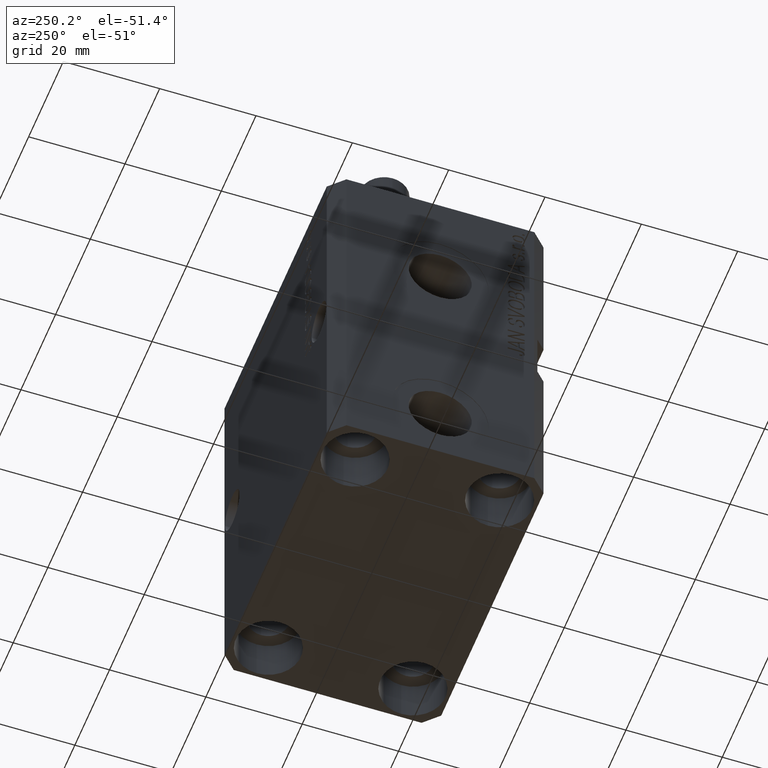
[diagram: clean part render]
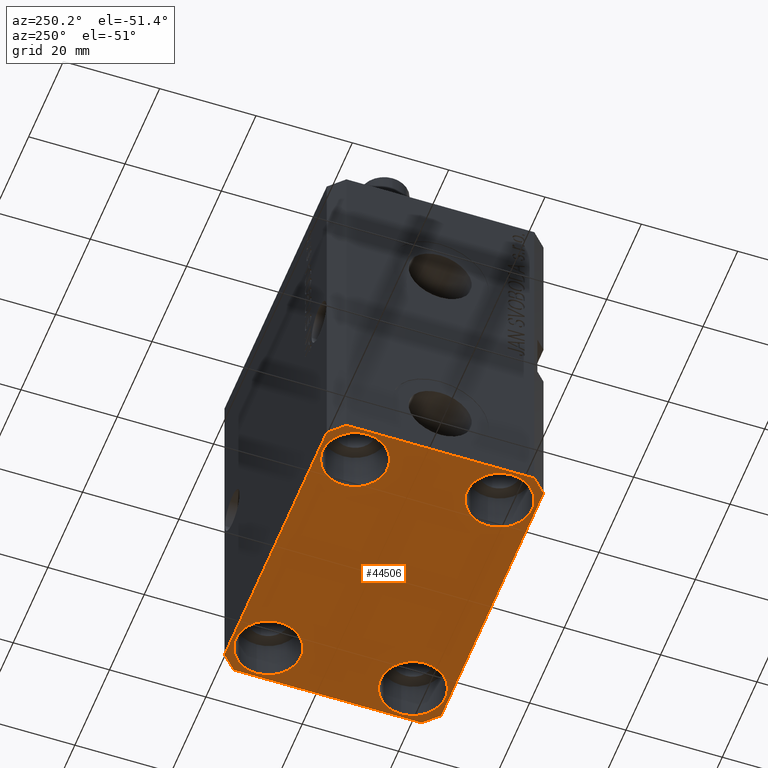
[diagram: same view with one face highlighted and labeled with its STEP entity id]
A machine part, auxiliary view. The second image highlights one B-rep face of the part: STEP entity #44506.
In plain terms, the highlighted planar face has unit normal (0, 0, 1).
Its self-contained STEP definition (entity closure, byte-faithful):
#45 = EDGE_LOOP ( 'NONE', ( #31696, #40649 ) ) ;
#196 = DIRECTION ( 'NONE',  ( -0.000000000000000000, -0.000000000000000000, 1.000000000000000000 ) ) ;
#368 = DIRECTION ( 'NONE',  ( 0.000000000000000000, -1.000000000000000000, 0.000000000000000000 ) ) ;
#493 = EDGE_CURVE ( 'NONE', #5069, #20126, #42594, .T. ) ;
#1071 = AXIS2_PLACEMENT_3D ( 'NONE', #46279, #2985, #3217 ) ;
#1541 = ORIENTED_EDGE ( 'NONE', *, *, #13638, .F. ) ;
#1779 = VERTEX_POINT ( 'NONE', #9866 ) ;
#1876 = ORIENTED_EDGE ( 'NONE', *, *, #32901, .T. ) ;
#2319 = DIRECTION ( 'NONE',  ( 0.7071067811865483499, 0.7071067811865466846, 0.000000000000000000 ) ) ;
#2946 = DIRECTION ( 'NONE',  ( 1.000000000000000000, 0.000000000000000000, 0.000000000000000000 ) ) ;
#2985 = DIRECTION ( 'NONE',  ( 0.000000000000000000, 0.000000000000000000, 1.000000000000000000 ) ) ;
#3153 = EDGE_CURVE ( 'NONE', #3984, #45415, #4030, .T. ) ;
#3217 = DIRECTION ( 'NONE',  ( 1.000000000000000000, 0.000000000000000000, -0.000000000000000000 ) ) ;
#3284 = DIRECTION ( 'NONE',  ( 1.334402673828349134E-14, 1.000000000000000000, 0.000000000000000000 ) ) ;
#3684 = CIRCLE ( 'NONE', #17963, 6.750000000041541881 ) ;
#3984 = VERTEX_POINT ( 'NONE', #40472 ) ;
#4030 = CIRCLE ( 'NONE', #39386, 6.749999999977465137 ) ;
#4279 = EDGE_LOOP ( 'NONE', ( #1876, #6939 ) ) ;
#4493 = CARTESIAN_POINT ( 'NONE',  ( -25.00000000000000355, 15.00000000000000000, -77.00000000000000000 ) ) ;
#4760 = ORIENTED_EDGE ( 'NONE', *, *, #35899, .F. ) ;
#4828 = DIRECTION ( 'NONE',  ( -0.000000000000000000, -0.000000000000000000, 1.000000000000000000 ) ) ;
#4958 = ORIENTED_EDGE ( 'NONE', *, *, #32311, .T. ) ;
#5069 = VERTEX_POINT ( 'NONE', #6641 ) ;
#5086 = ORIENTED_EDGE ( 'NONE', *, *, #45566, .T. ) ;
#5463 = DIRECTION ( 'NONE',  ( 0.7071067811865474617, -0.7071067811865474617, 0.000000000000000000 ) ) ;
#6467 = EDGE_LOOP ( 'NONE', ( #1541, #4760, #33099, #8367, #19905, #27134, #33262, #42065 ) ) ;
#6509 = FACE_BOUND ( 'NONE', #28281, .T. ) ;
#6641 = CARTESIAN_POINT ( 'NONE',  ( 32.49999999999651124, -19.49999999999949196, -77.00000000000000000 ) ) ;
#6706 = CARTESIAN_POINT ( 'NONE',  ( 25.00000000000000355, -15.00000000000000000, -77.00000000000000000 ) ) ;
#6718 = AXIS2_PLACEMENT_3D ( 'NONE', #20556, #24784, #34926 ) ;
#6939 = ORIENTED_EDGE ( 'NONE', *, *, #3153, .T. ) ;
#7310 = LINE ( 'NONE', #21648, #45774 ) ;
#7422 = LINE ( 'NONE', #32597, #24029 ) ;
#7988 = DIRECTION ( 'NONE',  ( 1.000000000000000000, 1.176083712526788232E-16, 0.000000000000000000 ) ) ;
#8367 = ORIENTED_EDGE ( 'NONE', *, *, #41139, .F. ) ;
#9479 = CARTESIAN_POINT ( 'NONE',  ( -29.49999999999650413, 22.49999999999949907, -77.00000000000000000 ) ) ;
#9866 = CARTESIAN_POINT ( 'NONE',  ( -31.75000000002253842, 15.00000000000000000, -77.00000000000000000 ) ) ;
#9996 = DIRECTION ( 'NONE',  ( -0.000000000000000000, -0.000000000000000000, 1.000000000000000000 ) ) ;
#10070 = CARTESIAN_POINT ( 'NONE',  ( 29.49999999999650413, -22.49999999999949196, -77.00000000000000000 ) ) ;
#10363 = VERTEX_POINT ( 'NONE', #39537 ) ;
#10368 = DIRECTION ( 'NONE',  ( -0.7071067811865474617, -0.7071067811865474617, 0.000000000000000000 ) ) ;
#10977 = VERTEX_POINT ( 'NONE', #42320 ) ;
#11531 = VERTEX_POINT ( 'NONE', #20788 ) ;
#11542 = CARTESIAN_POINT ( 'NONE',  ( 29.49999999999707967, 22.49999999999951328, -77.00000000000000000 ) ) ;
#12609 = VERTEX_POINT ( 'NONE', #41018 ) ;
#12630 = VECTOR ( 'NONE', #32959, 1000.000000000000000 ) ;
#13638 = EDGE_CURVE ( 'NONE', #11531, #36520, #40027, .T. ) ;
#14027 = DIRECTION ( 'NONE',  ( -0.000000000000000000, -0.000000000000000000, 1.000000000000000000 ) ) ;
#14041 = FACE_OUTER_BOUND ( 'NONE', #6467, .T. ) ;
#15119 = AXIS2_PLACEMENT_3D ( 'NONE', #33514, #22669, #18912 ) ;
#15753 = CIRCLE ( 'NONE', #42059, 6.749999999958452790 ) ;
#16074 = DIRECTION ( 'NONE',  ( -0.7071067811865352493, 0.7071067811865597852, 0.000000000000000000 ) ) ;
#16118 = AXIS2_PLACEMENT_3D ( 'NONE', #19165, #31602, #17249 ) ;
#16722 = VECTOR ( 'NONE', #16074, 1000.000000000000000 ) ;
#16912 = EDGE_CURVE ( 'NONE', #36520, #30197, #7310, .T. ) ;
#17249 = DIRECTION ( 'NONE',  ( 1.000000000000000000, 0.000000000000000000, 0.000000000000000000 ) ) ;
#17343 = VERTEX_POINT ( 'NONE', #26756 ) ;
#17963 = AXIS2_PLACEMENT_3D ( 'NONE', #18254, #4828, #19189 ) ;
#18194 = EDGE_CURVE ( 'NONE', #43407, #1779, #44204, .T. ) ;
#18253 = DIRECTION ( 'NONE',  ( 1.000000000000000000, 0.000000000000000000, 0.000000000000000000 ) ) ;
#18254 = CARTESIAN_POINT ( 'NONE',  ( -25.00000000000000355, -15.00000000000000000, -77.00000000000000000 ) ) ;
#18338 = ORIENTED_EDGE ( 'NONE', *, *, #19683, .T. ) ;
#18912 = DIRECTION ( 'NONE',  ( 1.000000000000000000, 0.000000000000000000, 0.000000000000000000 ) ) ;
#19165 = CARTESIAN_POINT ( 'NONE',  ( -25.00000000000000355, -15.00000000000000000, -77.00000000000000000 ) ) ;
#19189 = DIRECTION ( 'NONE',  ( 1.000000000000000000, 0.000000000000000000, 0.000000000000000000 ) ) ;
#19279 = CARTESIAN_POINT ( 'NONE',  ( -29.49999999999650413, -22.49999999999949907, -77.00000000000000000 ) ) ;
#19683 = EDGE_CURVE ( 'NONE', #23580, #10363, #3684, .T. ) ;
#19905 = ORIENTED_EDGE ( 'NONE', *, *, #25872, .F. ) ;
#20126 = VERTEX_POINT ( 'NONE', #28505 ) ;
#20556 = CARTESIAN_POINT ( 'NONE',  ( 24.99999999999999645, 15.00000000000000888, -77.00000000000000000 ) ) ;
#20788 = CARTESIAN_POINT ( 'NONE',  ( 29.49999999999707967, 22.49999999999951328, -77.00000000000000000 ) ) ;
#20863 = FACE_BOUND ( 'NONE', #43629, .T. ) ;
#20907 = CARTESIAN_POINT ( 'NONE',  ( -18.24999999997747224, 15.00000000000000000, -77.00000000000000000 ) ) ;
#21095 = FACE_BOUND ( 'NONE', #4279, .T. ) ;
#21648 = CARTESIAN_POINT ( 'NONE',  ( -29.49999999999650413, 22.49999999999949907, -77.00000000000000000 ) ) ;
#21794 = VECTOR ( 'NONE', #5463, 1000.000000000000114 ) ;
#21855 = CARTESIAN_POINT ( 'NONE',  ( 32.49999999999651124, -19.49999999999949196, -77.00000000000000000 ) ) ;
#21998 = CARTESIAN_POINT ( 'NONE',  ( -32.49999999999650413, 19.49999999999949907, -77.00000000000000000 ) ) ;
#22068 = VECTOR ( 'NONE', #3284, 1000.000000000000000 ) ;
#22669 = DIRECTION ( 'NONE',  ( -0.000000000000000000, -0.000000000000000000, 1.000000000000000000 ) ) ;
#23123 = CARTESIAN_POINT ( 'NONE',  ( -31.75000000004154899, -15.00000000000000000, -77.00000000000000000 ) ) ;
#23580 = VERTEX_POINT ( 'NONE', #23123 ) ;
#24029 = VECTOR ( 'NONE', #368, 1000.000000000000000 ) ;
#24638 = AXIS2_PLACEMENT_3D ( 'NONE', #42802, #196, #29142 ) ;
#24784 = DIRECTION ( 'NONE',  ( -0.000000000000000000, -0.000000000000000000, 1.000000000000000000 ) ) ;
#25872 = EDGE_CURVE ( 'NONE', #12609, #17343, #44000, .T. ) ;
#26137 = DIRECTION ( 'NONE',  ( -0.000000000000000000, -0.000000000000000000, 1.000000000000000000 ) ) ;
#26756 = CARTESIAN_POINT ( 'NONE',  ( 29.49999999999650413, -22.49999999999949196, -77.00000000000000000 ) ) ;
#27134 = ORIENTED_EDGE ( 'NONE', *, *, #30703, .F. ) ;
#28092 = CARTESIAN_POINT ( 'NONE',  ( 18.25000000002253842, -15.00000000000000000, -77.00000000000000000 ) ) ;
#28281 = EDGE_LOOP ( 'NONE', ( #18338, #5086 ) ) ;
#28505 = CARTESIAN_POINT ( 'NONE',  ( 32.49999999999702993, 19.49999999999945999, -77.00000000000000000 ) ) ;
#28515 = EDGE_CURVE ( 'NONE', #10977, #42815, #39790, .T. ) ;
#28648 = VECTOR ( 'NONE', #7988, 1000.000000000000000 ) ;
#29053 = EDGE_CURVE ( 'NONE', #42815, #10977, #15753, .T. ) ;
#29142 = DIRECTION ( 'NONE',  ( 1.000000000000000000, 0.000000000000000000, 0.000000000000000000 ) ) ;
#30100 = AXIS2_PLACEMENT_3D ( 'NONE', #4493, #26137, #40507 ) ;
#30193 = EDGE_CURVE ( 'NONE', #30197, #32872, #7422, .T. ) ;
#30197 = VERTEX_POINT ( 'NONE', #21998 ) ;
#30663 = LINE ( 'NONE', #45016, #16722 ) ;
#30703 = EDGE_CURVE ( 'NONE', #32872, #12609, #38624, .T. ) ;
#31021 = LINE ( 'NONE', #10070, #43169 ) ;
#31090 = CARTESIAN_POINT ( 'NONE',  ( -32.49999999999650413, -19.49999999999949907, -77.00000000000000000 ) ) ;
#31602 = DIRECTION ( 'NONE',  ( -0.000000000000000000, -0.000000000000000000, 1.000000000000000000 ) ) ;
#31612 = CIRCLE ( 'NONE', #30100, 6.750000000022533087 ) ;
#31693 = FACE_BOUND ( 'NONE', #45, .T. ) ;
#31696 = ORIENTED_EDGE ( 'NONE', *, *, #29053, .T. ) ;
#32311 = EDGE_CURVE ( 'NONE', #1779, #43407, #31612, .T. ) ;
#32597 = CARTESIAN_POINT ( 'NONE',  ( -32.49999999999650413, 19.49999999999949907, -77.00000000000000000 ) ) ;
#32872 = VERTEX_POINT ( 'NONE', #35648 ) ;
#32901 = EDGE_CURVE ( 'NONE', #45415, #3984, #35415, .T. ) ;
#32959 = DIRECTION ( 'NONE',  ( -1.000000000000000000, -2.352167425053553784E-16, 0.000000000000000000 ) ) ;
#33099 = ORIENTED_EDGE ( 'NONE', *, *, #493, .F. ) ;
#33262 = ORIENTED_EDGE ( 'NONE', *, *, #30193, .F. ) ;
#33514 = CARTESIAN_POINT ( 'NONE',  ( 25.00000000000000355, -15.00000000000000000, -77.00000000000000000 ) ) ;
#34926 = DIRECTION ( 'NONE',  ( 1.000000000000000000, 0.000000000000000000, 0.000000000000000000 ) ) ;
#35415 = CIRCLE ( 'NONE', #15119, 6.749999999977465137 ) ;
#35452 = CARTESIAN_POINT ( 'NONE',  ( 24.99999999999999645, 15.00000000000000888, -77.00000000000000000 ) ) ;
#35463 = PLANE ( 'NONE',  #1071 ) ;
#35648 = CARTESIAN_POINT ( 'NONE',  ( -32.49999999999650413, -19.49999999999949907, -77.00000000000000000 ) ) ;
#35899 = EDGE_CURVE ( 'NONE', #20126, #11531, #30663, .T. ) ;
#36520 = VERTEX_POINT ( 'NONE', #9479 ) ;
#36652 = ORIENTED_EDGE ( 'NONE', *, *, #18194, .T. ) ;
#38624 = LINE ( 'NONE', #31090, #21794 ) ;
#39386 = AXIS2_PLACEMENT_3D ( 'NONE', #6706, #9996, #2946 ) ;
#39537 = CARTESIAN_POINT ( 'NONE',  ( -18.24999999995845812, -15.00000000000000000, -77.00000000000000000 ) ) ;
#39790 = CIRCLE ( 'NONE', #6718, 6.749999999958452790 ) ;
#40027 = LINE ( 'NONE', #11542, #12630 ) ;
#40190 = CIRCLE ( 'NONE', #16118, 6.750000000041541881 ) ;
#40472 = CARTESIAN_POINT ( 'NONE',  ( 31.74999999997746869, -15.00000000000000000, -77.00000000000000000 ) ) ;
#40507 = DIRECTION ( 'NONE',  ( 1.000000000000000000, 0.000000000000000000, 0.000000000000000000 ) ) ;
#40649 = ORIENTED_EDGE ( 'NONE', *, *, #28515, .T. ) ;
#41018 = CARTESIAN_POINT ( 'NONE',  ( -29.49999999999650413, -22.49999999999949907, -77.00000000000000000 ) ) ;
#41139 = EDGE_CURVE ( 'NONE', #17343, #5069, #31021, .T. ) ;
#42059 = AXIS2_PLACEMENT_3D ( 'NONE', #35452, #14027, #18253 ) ;
#42065 = ORIENTED_EDGE ( 'NONE', *, *, #16912, .F. ) ;
#42320 = CARTESIAN_POINT ( 'NONE',  ( 31.74999999995845101, 15.00000000000000888, -77.00000000000000000 ) ) ;
#42594 = LINE ( 'NONE', #21855, #22068 ) ;
#42802 = CARTESIAN_POINT ( 'NONE',  ( -25.00000000000000355, 15.00000000000000000, -77.00000000000000000 ) ) ;
#42815 = VERTEX_POINT ( 'NONE', #43079 ) ;
#43079 = CARTESIAN_POINT ( 'NONE',  ( 18.25000000004154543, 15.00000000000000888, -77.00000000000000000 ) ) ;
#43169 = VECTOR ( 'NONE', #2319, 1000.000000000000000 ) ;
#43407 = VERTEX_POINT ( 'NONE', #20907 ) ;
#43629 = EDGE_LOOP ( 'NONE', ( #4958, #36652 ) ) ;
#44000 = LINE ( 'NONE', #19279, #28648 ) ;
#44204 = CIRCLE ( 'NONE', #24638, 6.750000000022533087 ) ;
#44506 = ADVANCED_FACE ( 'NONE', ( #6509, #21095, #31693, #20863, #14041 ), #35463, .F. ) ;
#45016 = CARTESIAN_POINT ( 'NONE',  ( 32.49999999999702993, 19.49999999999945999, -77.00000000000000000 ) ) ;
#45415 = VERTEX_POINT ( 'NONE', #28092 ) ;
#45566 = EDGE_CURVE ( 'NONE', #10363, #23580, #40190, .T. ) ;
#45774 = VECTOR ( 'NONE', #10368, 1000.000000000000114 ) ;
#46279 = CARTESIAN_POINT ( 'NONE',  ( 0.000000000000000000, 0.000000000000000000, -77.00000000000000000 ) ) ;